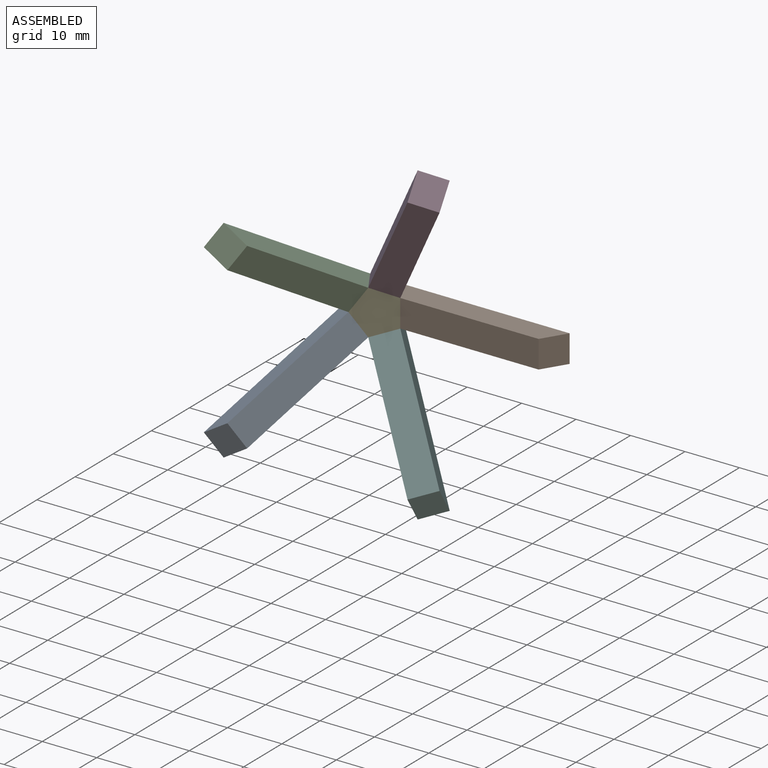
[diagram: assembled view]
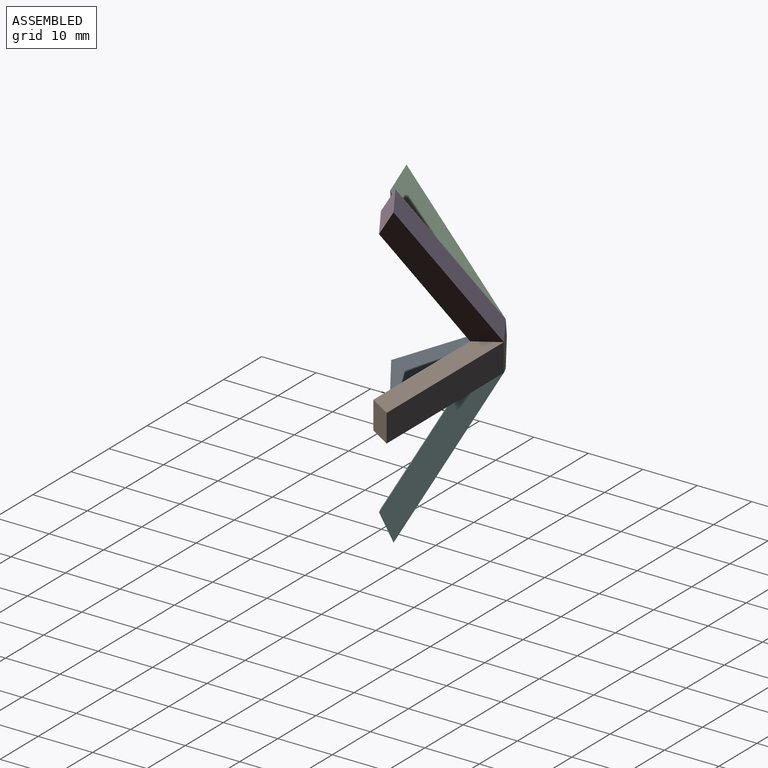
[diagram: assembled view, second angle]
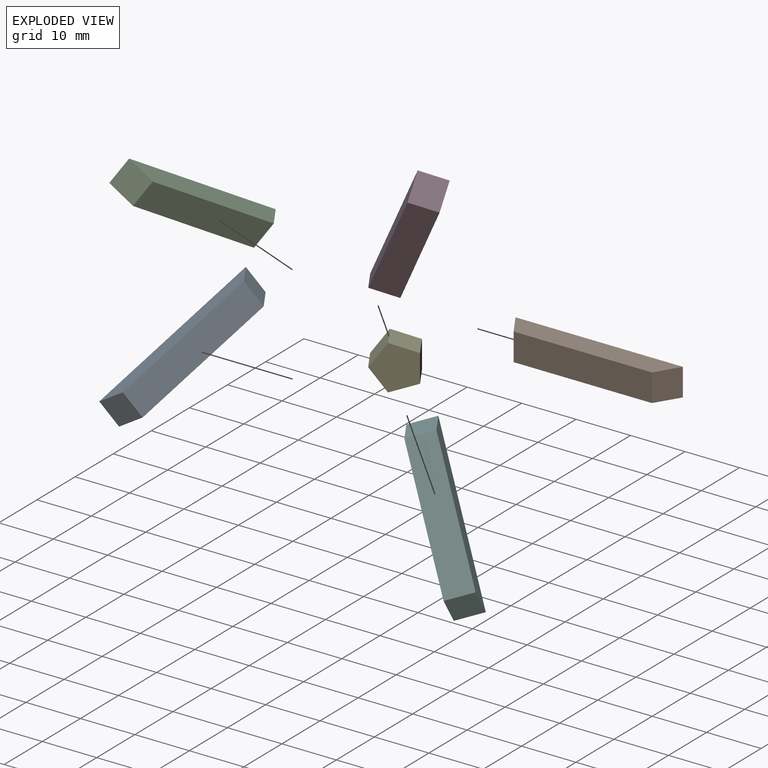
[diagram: exploded view]
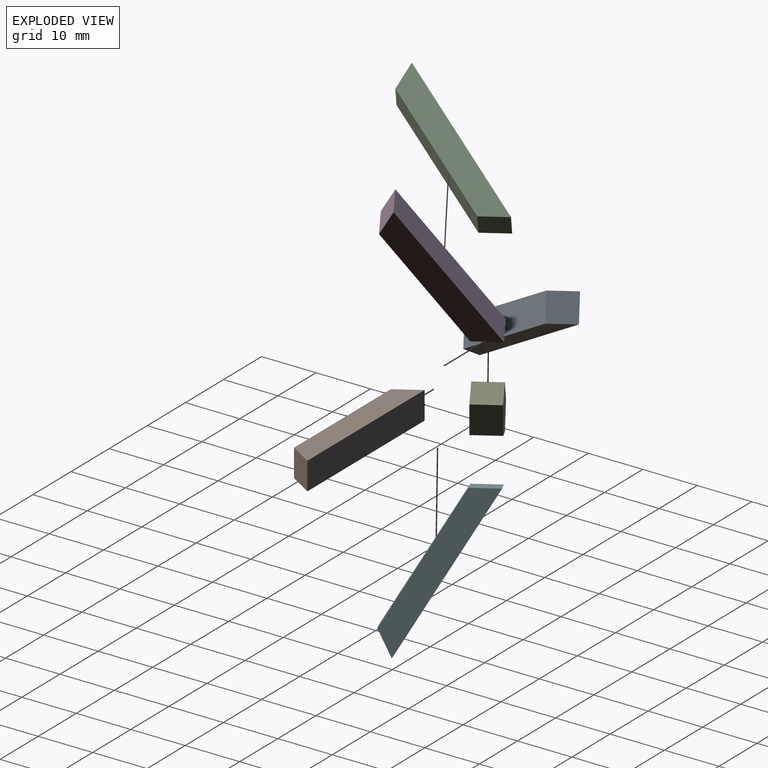
[diagram: exploded view, second angle]
ASSEMBLY  parts=6 mates=5
PART A: 6 faces, bbox 30.7x4.3x5.1 mm
  f0: plane 5.08x4.32mm, normal (-0.85,-0.53,0), area 25.8mm2, adj f1,f3,f4,f5
  f1: plane 25.4x5.08mm, normal (0,-1,0), area 129mm2, adj f0,f2,f4,f5
  f2: plane 5.08x4.32mm, normal (0.85,-0.53,0), area 25.8mm2, adj f1,f3,f4,f5
  f3: plane 30.74x5.08mm, normal (0,1,0), area 156.2mm2, adj f0,f2,f4,f5
  f4: plane 30.74x4.32mm, normal (0,0,1), area 121.3mm2, adj f0,f1,f2,f3
  f5: plane 30.74x4.32mm, normal (0,0,-1), area 121.3mm2, adj f0,f1,f2,f3
PART B: same geometry as A
PART C: same geometry as A
PART D: same geometry as A
PART E: 7 faces, bbox 8.2x7.8x5.1 mm
  f0: plane 5.08x4.83mm, normal (0.95,-0.31,0), area 25.8mm2, adj f1,f4,f5,f6
  f1: plane 5.08x4.11mm, normal (0.59,0.81,0), area 25.8mm2, adj f0,f2,f5,f6
  f2: plane 5.08x4.11mm, normal (-0.59,0.81,0), area 25.8mm2, adj f1,f3,f5,f6
  f3: plane 5.08x4.83mm, normal (-0.95,-0.31,0), area 25.8mm2, adj f2,f4,f5,f6
  f4: plane 5.08x5.08mm, normal (0,-1,0), area 25.8mm2, adj f0,f3,f5,f6
  f5: plane 8.22x7.82mm, normal (0,0,1), area 44.4mm2, adj f0,f1,f2,f3,f4
  f6: plane 8.22x7.82mm, normal (0,0,-1), area 44.4mm2, adj f0,f1,f2,f3,f4
PART F: same geometry as A
PLACE A rot(axis=(-0.53,0.85,0),144deg) t=(-19.7,-18.84,-1.44)mm
PLACE B t=(7.07,-2.29,3.71)mm
PLACE C rot(axis=(0.53,-0.85,0),144deg) t=(-17.16,-17.27,18.04)mm
PLACE D rot(axis=(0.53,-0.85,0),72deg) t=(-0.61,-7.04,21.22)mm
PLACE E rot(axis=(-0.66,0.37,0.66),139.7deg) t=(-8.6,-8.45,6.25)mm
PLACE F rot(axis=(-0.53,0.85,0),72deg) t=(-4.72,-9.58,-10.3)mm
MATE fastened E.f1 <-> A.f0  axis (-0.69,-0.43,-0.59) through (-12.34,-7.78,4.19)mm
MATE fastened E.f0 <-> F.f0  axis (0.26,0.16,-0.95) through (-9.02,-5.72,2.92)mm
MATE fastened E.f2 <-> C.f0  axis (-0.69,-0.43,0.59) through (-12.34,-7.78,8.3)mm
MATE fastened D.f0 <-> E.f3  axis (-0.26,-0.16,-0.95) through (-9.02,-5.72,9.57)mm
MATE fastened E.f4 <-> B.f0  axis (0.85,0.53,0) through (-6.96,-4.45,6.25)mm
